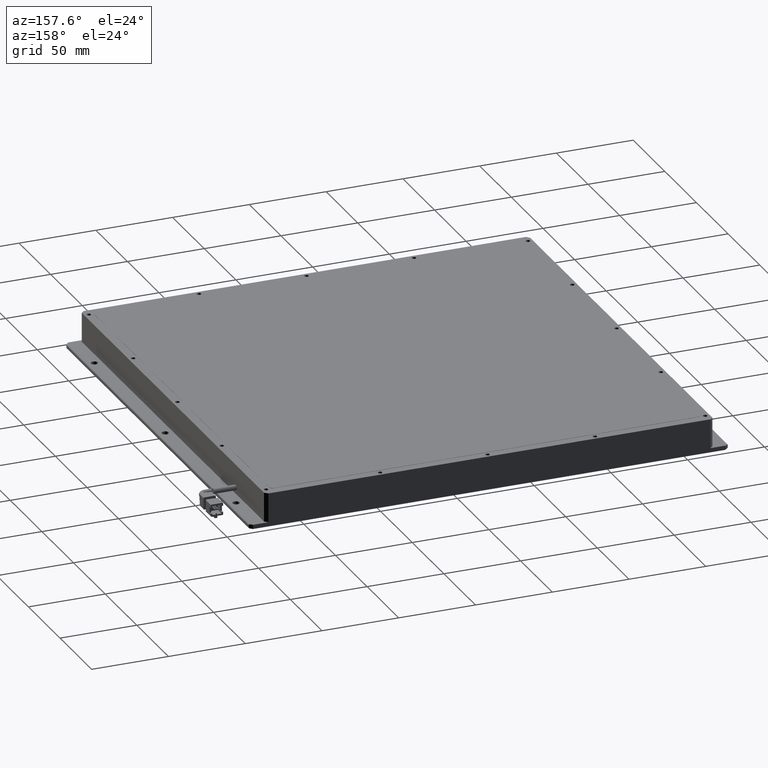
[diagram: clean part render]
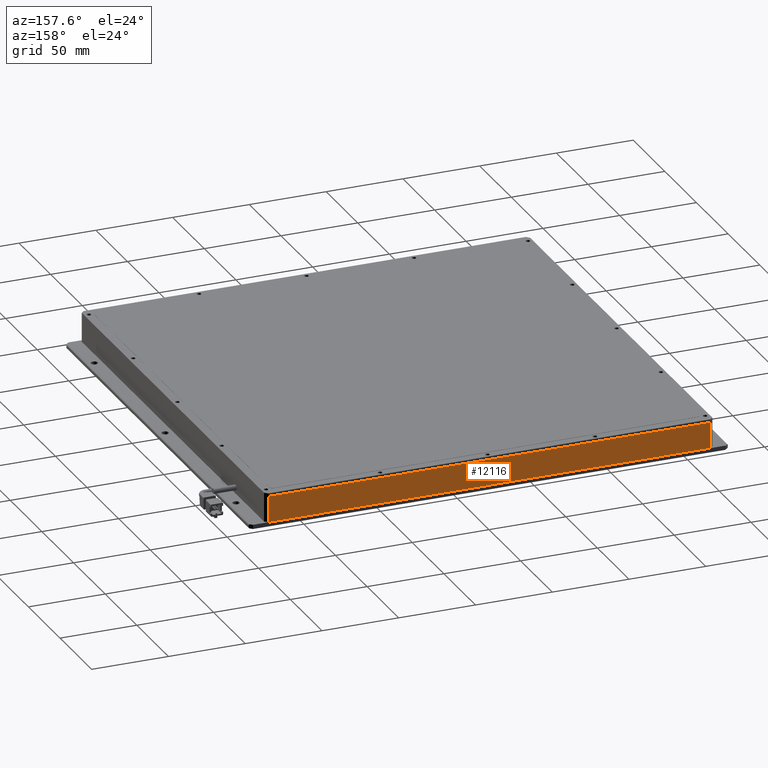
[diagram: same view with one face highlighted and labeled with its STEP entity id]
A machine part, auxiliary view. The second image highlights one B-rep face of the part: STEP entity #12116.
In plain terms, the highlighted planar face has unit normal (0, -1, 0).
Its self-contained STEP definition (entity closure, byte-faithful):
#759 = VERTEX_POINT ( 'NONE', #17039 ) ;
#981 = DIRECTION ( 'NONE',  ( 1.000000000000000000, 0.0000000000000000000, 0.0000000000000000000 ) ) ;
#1590 = ORIENTED_EDGE ( 'NONE', *, *, #15898, .F. ) ;
#1972 = PLANE ( 'NONE',  #25713 ) ;
#2090 = CARTESIAN_POINT ( 'NONE',  ( 176.9193228736581900, 159.2698045692267500, 8.499999999971805700 ) ) ;
#3137 = CARTESIAN_POINT ( 'NONE',  ( -113.0806771263418400, 159.2698045692267500, -8.500000000028197900 ) ) ;
#3237 = EDGE_CURVE ( 'NONE', #759, #9339, #22125, .T. ) ;
#4209 = DIRECTION ( 'NONE',  ( 0.0000000000000000000, -1.000000000000000000, 0.0000000000000000000 ) ) ;
#4707 = CARTESIAN_POINT ( 'NONE',  ( -113.0806771263418400, 159.2698045692266900, 8.499999999971805700 ) ) ;
#5568 = CARTESIAN_POINT ( 'NONE',  ( 176.9193228736581300, 159.2698045692267500, -8.500000000028194300 ) ) ;
#6216 = EDGE_LOOP ( 'NONE', ( #1590, #20995, #25278, #13774 ) ) ;
#8304 = EDGE_CURVE ( 'NONE', #17712, #9339, #12340, .T. ) ;
#9339 = VERTEX_POINT ( 'NONE', #25144 ) ;
#10688 = DIRECTION ( 'NONE',  ( -0.0000000000000000000, 0.0000000000000000000, 1.000000000000000000 ) ) ;
#11065 = CARTESIAN_POINT ( 'NONE',  ( -111.0806771263418400, 159.2698045692267500, 8.499999999971805700 ) ) ;
#11349 = DIRECTION ( 'NONE',  ( -0.0000000000000000000, 0.0000000000000000000, 1.000000000000000000 ) ) ;
#12116 = ADVANCED_FACE ( 'NONE', ( #17556 ), #1972, .F. ) ;
#12340 = LINE ( 'NONE', #4707, #23652 ) ;
#13774 = ORIENTED_EDGE ( 'NONE', *, *, #22364, .F. ) ;
#14877 = LINE ( 'NONE', #26208, #20526 ) ;
#15898 = EDGE_CURVE ( 'NONE', #759, #24544, #18384, .T. ) ;
#16556 = VECTOR ( 'NONE', #10688, 1000.000000000000000 ) ;
#17039 = CARTESIAN_POINT ( 'NONE',  ( -111.0806771263418700, 159.2698045692267500, -8.500000000028197900 ) ) ;
#17150 = CARTESIAN_POINT ( 'NONE',  ( -113.0806771263418400, 159.2698045692267500, 8.499999999971805700 ) ) ;
#17556 = FACE_OUTER_BOUND ( 'NONE', #6216, .T. ) ;
#17712 = VERTEX_POINT ( 'NONE', #2090 ) ;
#18384 = LINE ( 'NONE', #3137, #23284 ) ;
#19285 = DIRECTION ( 'NONE',  ( 0.0000000000000000000, -0.0000000000000000000, -1.000000000000000000 ) ) ;
#19785 = DIRECTION ( 'NONE',  ( -1.000000000000000000, -0.0000000000000000000, 0.0000000000000000000 ) ) ;
#20526 = VECTOR ( 'NONE', #11349, 1000.000000000000000 ) ;
#20995 = ORIENTED_EDGE ( 'NONE', *, *, #3237, .T. ) ;
#22125 = LINE ( 'NONE', #11065, #16556 ) ;
#22364 = EDGE_CURVE ( 'NONE', #24544, #17712, #14877, .T. ) ;
#23284 = VECTOR ( 'NONE', #981, 1000.000000000000000 ) ;
#23652 = VECTOR ( 'NONE', #19785, 1000.000000000000000 ) ;
#24544 = VERTEX_POINT ( 'NONE', #5568 ) ;
#25144 = CARTESIAN_POINT ( 'NONE',  ( -111.0806771263418400, 159.2698045692267500, 8.499999999971805700 ) ) ;
#25278 = ORIENTED_EDGE ( 'NONE', *, *, #8304, .F. ) ;
#25713 = AXIS2_PLACEMENT_3D ( 'NONE', #17150, #4209, #19285 ) ;
#26208 = CARTESIAN_POINT ( 'NONE',  ( 176.9193228736581900, 159.2698045692267500, 8.499999999971805700 ) ) ;